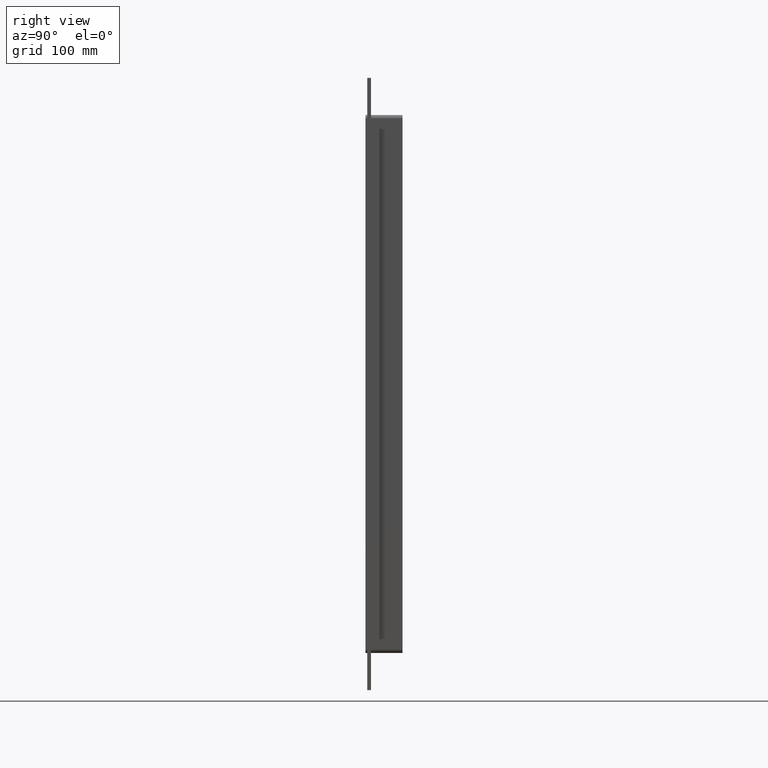
[diagram: clean part render]
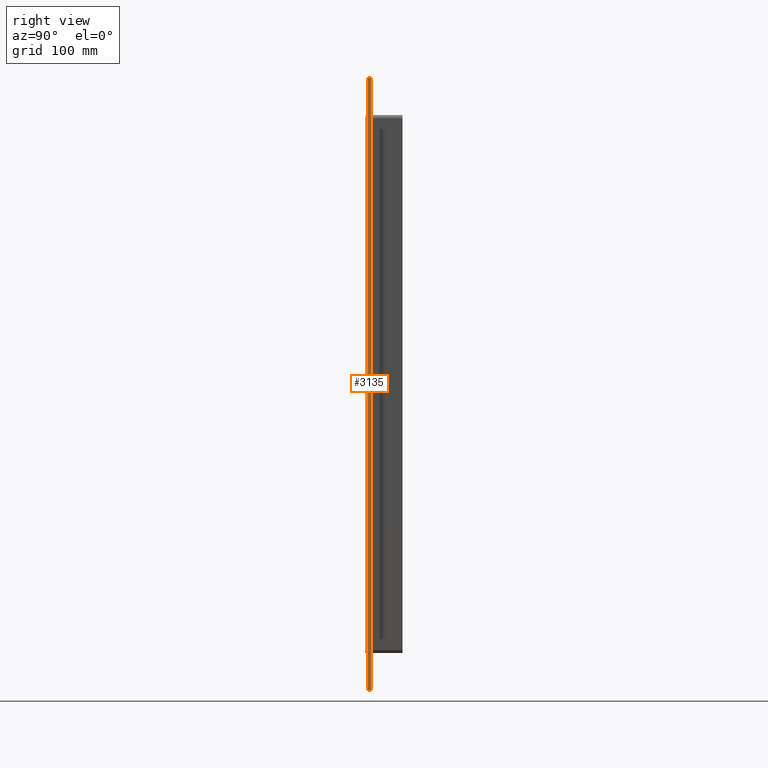
[diagram: same view with one face highlighted and labeled with its STEP entity id]
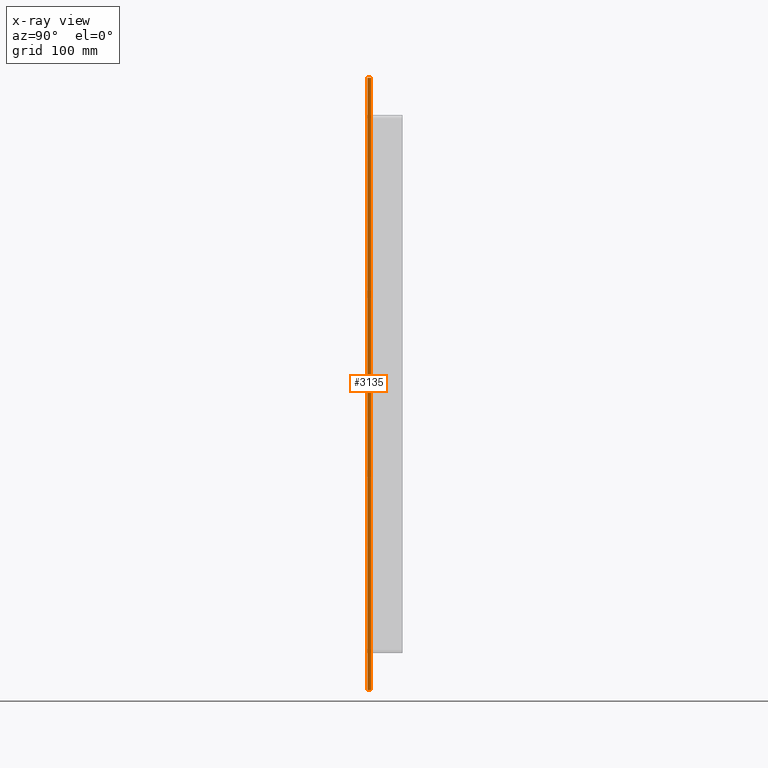
[diagram: x-ray of the same camera — body ghosted, the highlighted face saturated]
A machine part, right view. The second image highlights one B-rep face of the part: STEP entity #3135.
The next image is the same camera in x-ray: the body ghosted, the highlighted face saturated — about 0% of this face is hidden behind the body in this view.
In plain terms, the highlighted planar face has unit normal (1, 0, 0).
Its self-contained STEP definition (entity closure, byte-faithful):
#2687=CARTESIAN_POINT('',(322.00000000000011,6.000000000000001,495.00000000000006));
#2688=VERTEX_POINT('',#2687);
#2695=CARTESIAN_POINT('',(322.00000000000011,6.000000000000001,-494.99999999999994));
#2696=VERTEX_POINT('',#2695);
#2697=CARTESIAN_POINT('',(322.00000000000011,6.000000000000001,495.00000000000006));
#2698=DIRECTION('',(0.0,0.0,-1.0));
#2699=VECTOR('',#2698,990.0);
#2700=LINE('',#2697,#2699);
#2701=EDGE_CURVE('',#2688,#2696,#2700,.T.);
#2887=CARTESIAN_POINT('',(322.00000000000011,0.0,495.00000000000006));
#2888=VERTEX_POINT('',#2887);
#2903=CARTESIAN_POINT('',(322.00000000000011,0.0,-494.99999999999994));
#2904=VERTEX_POINT('',#2903);
#2911=CARTESIAN_POINT('',(322.00000000000011,0.0,495.00000000000006));
#2912=DIRECTION('',(0.0,0.0,-1.0));
#2913=VECTOR('',#2912,990.0);
#2914=LINE('',#2911,#2913);
#2915=EDGE_CURVE('',#2888,#2904,#2914,.T.);
#3110=CARTESIAN_POINT('',(322.00000000000011,0.0,-494.99999999999994));
#3111=DIRECTION('',(0.0,1.0,0.0));
#3112=VECTOR('',#3111,6.000000000000001);
#3113=LINE('',#3110,#3112);
#3114=EDGE_CURVE('',#2904,#2696,#3113,.T.);
#3119=CARTESIAN_POINT('',(322.00000000000011,0.0,495.00000000000006));
#3120=DIRECTION('',(1.0,0.0,0.0));
#3121=DIRECTION('',(0.0,0.0,-1.0));
#3122=AXIS2_PLACEMENT_3D('',#3119,#3120,#3121);
#3123=PLANE('',#3122);
#3124=ORIENTED_EDGE('',*,*,#2915,.T.);
#3125=ORIENTED_EDGE('',*,*,#3114,.T.);
#3126=ORIENTED_EDGE('',*,*,#2701,.F.);
#3127=CARTESIAN_POINT('',(322.00000000000011,0.0,495.00000000000006));
#3128=DIRECTION('',(0.0,1.0,0.0));
#3129=VECTOR('',#3128,6.000000000000001);
#3130=LINE('',#3127,#3129);
#3131=EDGE_CURVE('',#2888,#2688,#3130,.T.);
#3132=ORIENTED_EDGE('',*,*,#3131,.F.);
#3133=EDGE_LOOP('',(#3124,#3125,#3126,#3132));
#3134=FACE_OUTER_BOUND('',#3133,.T.);
#3135=ADVANCED_FACE('',(#3134),#3123,.T.);